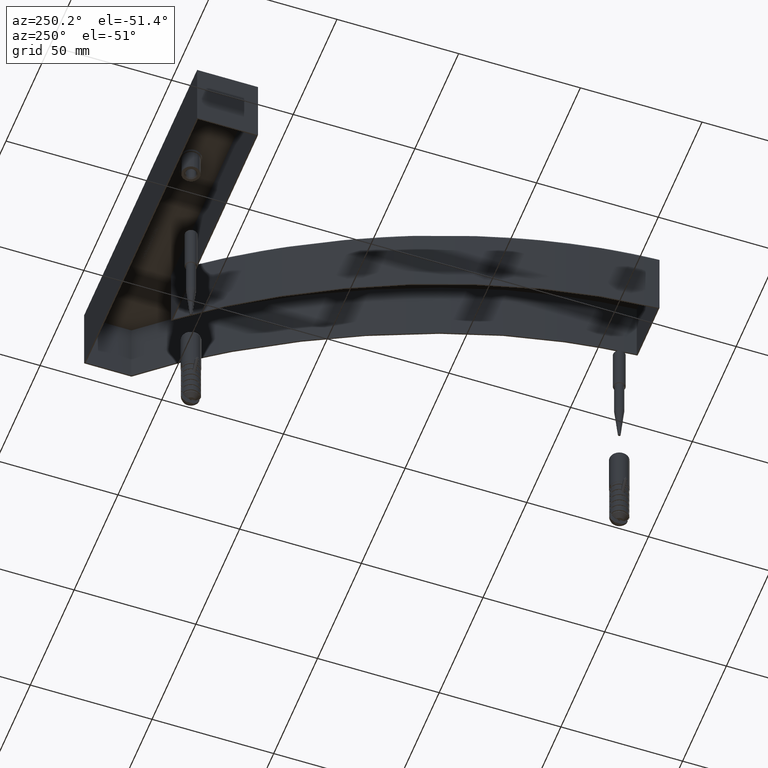
[diagram: clean part render]
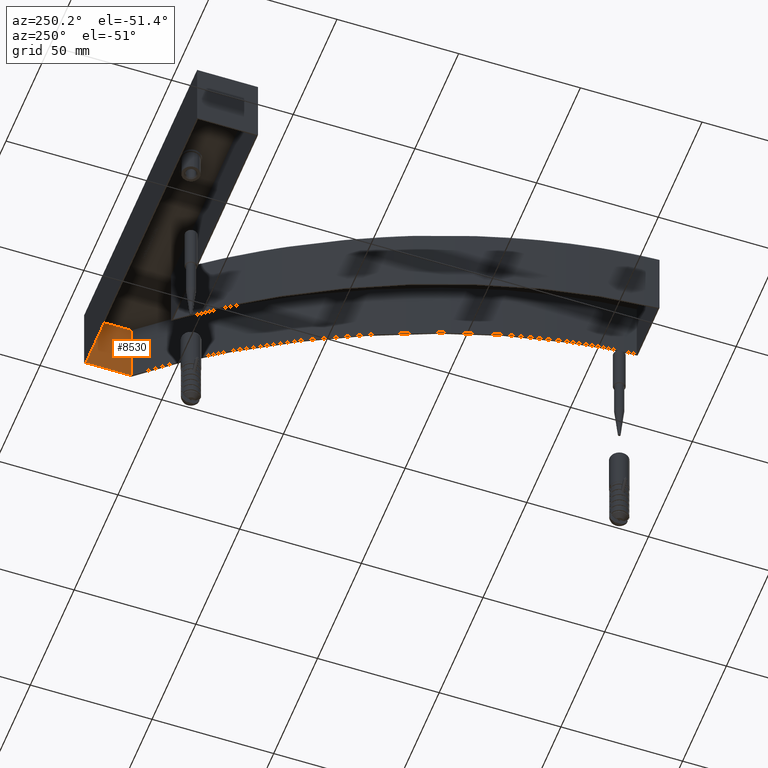
[diagram: same view with one face highlighted and labeled with its STEP entity id]
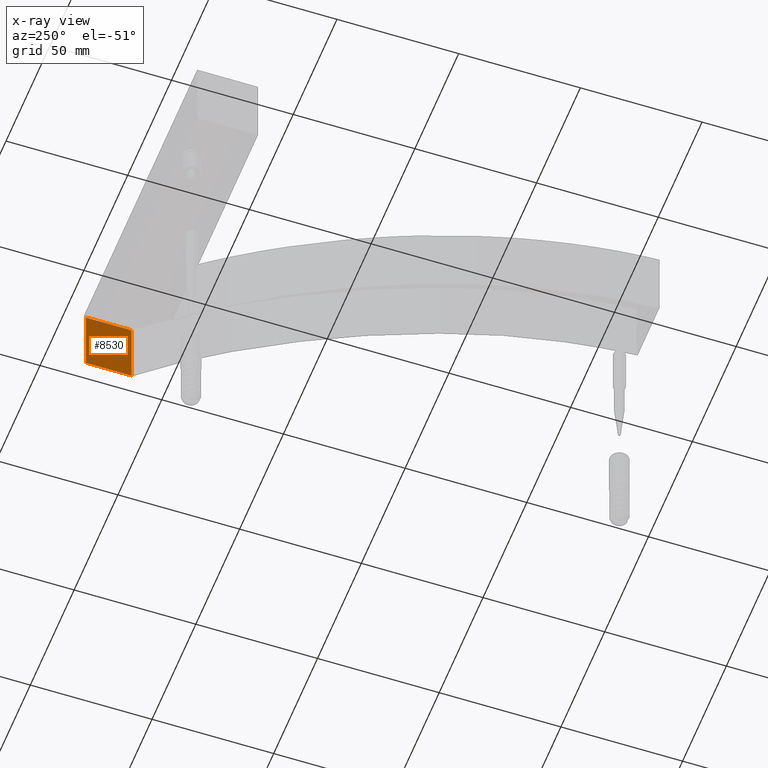
[diagram: x-ray of the same camera — body ghosted, the highlighted face saturated]
A machine part, auxiliary view. The second image highlights one B-rep face of the part: STEP entity #8530.
The next image is the same camera in x-ray: the body ghosted, the highlighted face saturated — about 2% of this face is hidden behind the body in this view.
In plain terms, the highlighted planar face has unit normal (-1, 0, 0).
Its self-contained STEP definition (entity closure, byte-faithful):
#373 = VECTOR ( 'NONE', #21509, 1000.000000000000000 ) ;
#1175 = CARTESIAN_POINT ( 'NONE',  ( 88.08252976351174400, 199.4999999999997400, -28.00000000000000000 ) ) ;
#1210 = PLANE ( 'NONE',  #18893 ) ;
#1718 = CARTESIAN_POINT ( 'NONE',  ( 88.08252976351172900, 180.7479402916564500, -3.469446951953614200E-015 ) ) ;
#1802 = CARTESIAN_POINT ( 'NONE',  ( 88.08252976351174400, 199.4999999999997400, 0.0000000000000000000 ) ) ;
#2314 = EDGE_LOOP ( 'NONE', ( #12982, #12932, #22841, #18890 ) ) ;
#4321 = LINE ( 'NONE', #19557, #373 ) ;
#8530 = ADVANCED_FACE ( 'NONE', ( #26298 ), #1210, .T. ) ;
#8719 = VECTOR ( 'NONE', #26703, 1000.000000000000000 ) ;
#10989 = LINE ( 'NONE', #1802, #8719 ) ;
#11062 = VERTEX_POINT ( 'NONE', #1718 ) ;
#11624 = EDGE_CURVE ( 'NONE', #22460, #26876, #4321, .T. ) ;
#12932 = ORIENTED_EDGE ( 'NONE', *, *, #11624, .F. ) ;
#12982 = ORIENTED_EDGE ( 'NONE', *, *, #24639, .F. ) ;
#15204 = CARTESIAN_POINT ( 'NONE',  ( 88.08252976351172900, 180.7479402916564500, -28.00000000000000000 ) ) ;
#15796 = DIRECTION ( 'NONE',  ( -7.400673858584111100E-016, -1.000000000000000000, 0.0000000000000000000 ) ) ;
#16870 = LINE ( 'NONE', #1175, #19837 ) ;
#17151 = CARTESIAN_POINT ( 'NONE',  ( 88.08252976351172900, 180.7479402916564500, -28.00000000000000000 ) ) ;
#17403 = CARTESIAN_POINT ( 'NONE',  ( 88.08252976351174400, 199.4999999999997400, 0.0000000000000000000 ) ) ;
#18890 = ORIENTED_EDGE ( 'NONE', *, *, #23241, .T. ) ;
#18893 = AXIS2_PLACEMENT_3D ( 'NONE', #26569, #24275, #20247 ) ;
#19243 = DIRECTION ( 'NONE',  ( -0.0000000000000000000, -0.0000000000000000000, 1.000000000000000000 ) ) ;
#19557 = CARTESIAN_POINT ( 'NONE',  ( 88.08252976351174400, 199.4999999999997400, -28.00000000000000000 ) ) ;
#19837 = VECTOR ( 'NONE', #15796, 1000.000000000000000 ) ;
#20247 = DIRECTION ( 'NONE',  ( -7.400673858584111100E-016, -1.000000000000000000, 0.0000000000000000000 ) ) ;
#21509 = DIRECTION ( 'NONE',  ( -0.0000000000000000000, -0.0000000000000000000, 1.000000000000000000 ) ) ;
#22460 = VERTEX_POINT ( 'NONE', #24317 ) ;
#22762 = VERTEX_POINT ( 'NONE', #17151 ) ;
#22814 = VECTOR ( 'NONE', #19243, 1000.000000000000000 ) ;
#22841 = ORIENTED_EDGE ( 'NONE', *, *, #24596, .T. ) ;
#23241 = EDGE_CURVE ( 'NONE', #22762, #11062, #24133, .T. ) ;
#24133 = LINE ( 'NONE', #15204, #22814 ) ;
#24275 = DIRECTION ( 'NONE',  ( -1.000000000000000000, 7.400673858584111100E-016, 0.0000000000000000000 ) ) ;
#24317 = CARTESIAN_POINT ( 'NONE',  ( 88.08252976351174400, 199.4999999999997400, -28.00000000000000000 ) ) ;
#24596 = EDGE_CURVE ( 'NONE', #22460, #22762, #16870, .T. ) ;
#24639 = EDGE_CURVE ( 'NONE', #26876, #11062, #10989, .T. ) ;
#26298 = FACE_OUTER_BOUND ( 'NONE', #2314, .T. ) ;
#26569 = CARTESIAN_POINT ( 'NONE',  ( 88.08252976351174400, 199.4999999999997400, -28.00000000000000000 ) ) ;
#26703 = DIRECTION ( 'NONE',  ( -7.400673858584111100E-016, -1.000000000000000000, 0.0000000000000000000 ) ) ;
#26876 = VERTEX_POINT ( 'NONE', #17403 ) ;